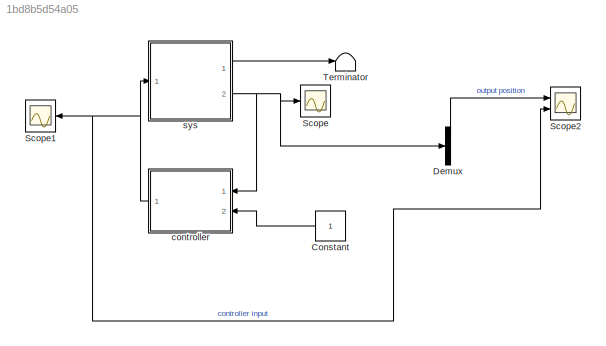
MODEL slx_1bd8b5d54a05
KIND model
CONFIG AbsTol = auto
CONFIG EnableMultiTasking = off
CONFIG FixedStep = auto
CONFIG MaxStep = auto
CONFIG MinStep = auto
CONFIG RelTol = 1e-3
CONFIG SampleTimeConstraint = Unconstrained
CONFIG SolverName = VariableStepAuto
CONFIG StartTime = 0.0
CONFIG StopTime = 10.0
BLOCK [Constant] Constant
  NameLocation = top
BLOCK [Demux] Demux
  Ports = [1, 4]
BLOCK [Scope] Scope
  Floating = off
  NumInputPorts = 1
  Ports = [1]
  ScopeSpecificationString = Simulink.scopes.TimeScopeBlockCfg('CurrentConfiguration', extmgr.ConfigurationSet(extmgr.Configuration('Core','General UI',true),extmgr.Configuration('Core','Source UI',true),extmgr.Configuration('Sources','WiredSimulink',true),extmgr.Configuration('Visuals','Time Domain',true,'SerializedDisplays',{struct('MinYLimReal','-0.32422','MaxYLimReal','1.14712','YLabelReal','','MinYLimMag','0.00000','MaxY...<+1385ch>
BLOCK [Scope] Scope1
  Floating = off
  NameLocation = top
  NumInputPorts = 1
  Ports = [1]
  ScopeSpecificationString = Simulink.scopes.TimeScopeBlockCfg('CurrentConfiguration', extmgr.ConfigurationSet(extmgr.Configuration('Core','General UI',true),extmgr.Configuration('Core','Source UI',true),extmgr.Configuration('Sources','WiredSimulink',true,'DataLoggingVariableName','ScopeData1'),extmgr.Configuration('Visuals','Time Domain',true,'SerializedDisplays',{struct('MinYLimReal','-9.7977','MaxYLimReal','5.3428','YLabel...<+1363ch>
BLOCK [Scope] Scope2
  Floating = off
  NumInputPorts = 2
  Ports = [2]
  ScopeSpecificationString = Simulink.scopes.TimeScopeBlockCfg('CurrentConfiguration', extmgr.ConfigurationSet(extmgr.Configuration('Core','General UI',true),extmgr.Configuration('Core','Source UI',true),extmgr.Configuration('Sources','WiredSimulink',true,'DataLoggingVariableName','ScopeData2'),extmgr.Configuration('Visuals','Time Domain',true,'SerializedDisplays',{struct('MinYLimReal','-9.7977','MaxYLimReal','5.3428','YLabel...<+1398ch>
BLOCK [Terminator] Terminator
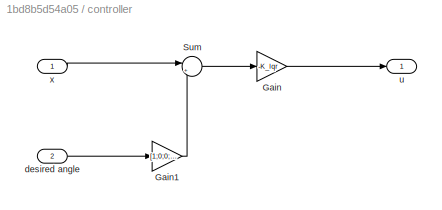
BLOCK [SubSystem] controller
  Ports = [2, 1]
  RequestExecContextInheritance = off
BLOCK [Gain] controller/Gain
  Gain = -K_lqr
  Multiplication = Matrix(K*u)
BLOCK [Gain] controller/Gain1
  Gain = [1;0;0;0]
BLOCK [Sum] controller/Sum
  Inputs = |+-
  Ports = [2, 1]
BLOCK [Inport] controller/desired angle
  Port = 2
BLOCK [Outport] controller/u
BLOCK [Inport] controller/x
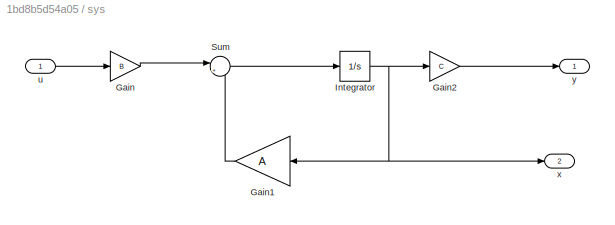
BLOCK [SubSystem] sys
  Ports = [1, 2]
  RequestExecContextInheritance = off
BLOCK [Gain] sys/Gain
  Gain = B
  Multiplication = Matrix(K*u)
BLOCK [Gain] sys/Gain1
  Gain = A
  Multiplication = Matrix(K*u) (u vector)
  NameLocation = top
BLOCK [Gain] sys/Gain2
  Gain = C
  Multiplication = Matrix(u*K)
BLOCK [Integrator] sys/Integrator
  InitialCondition = X0
  Ports = [1, 1]
BLOCK [Sum] sys/Sum
  Inputs = |++
  Ports = [2, 1]
BLOCK [Inport] sys/u
BLOCK [Outport] sys/x
  Port = 2
BLOCK [Outport] sys/y
LINE Constant:1 -> controller:2
LINE Demux:1 -> Scope2:1
LINE controller/Gain1:1 -> controller/Sum:2
LINE controller/Gain:1 -> controller/u:1
LINE controller/Sum:1 -> controller/Gain:1
LINE controller/desired angle:1 -> controller/Gain1:1
LINE controller/x:1 -> controller/Sum:1
NET controller:1 -> Scope1:1, Scope2:2, sys:1
LINE sys/Gain1:1 -> sys/Sum:2
LINE sys/Gain2:1 -> sys/y:1
LINE sys/Gain:1 -> sys/Sum:1
NET sys/Integrator:1 -> sys/Gain1:1, sys/Gain2:1, sys/x:1
LINE sys/Sum:1 -> sys/Integrator:1
LINE sys/u:1 -> sys/Gain:1
LINE sys:1 -> Terminator:1
NET sys:2 -> Demux:1, Scope:1, controller:1
note: NET lines group one-source signal fan-out (src -> all destinations, sorted); 1:1 wires keep LINE
